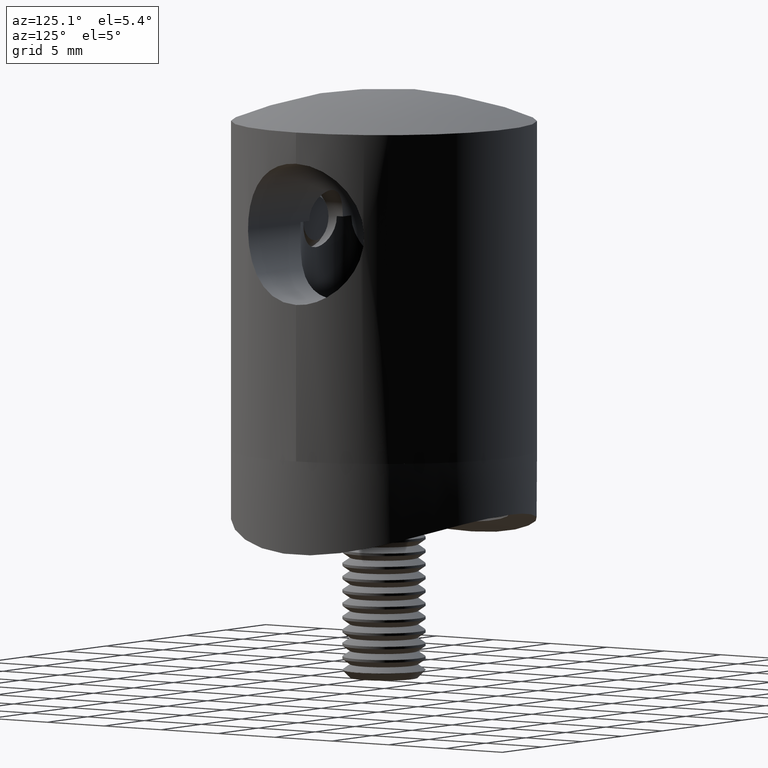
[diagram: clean part render]
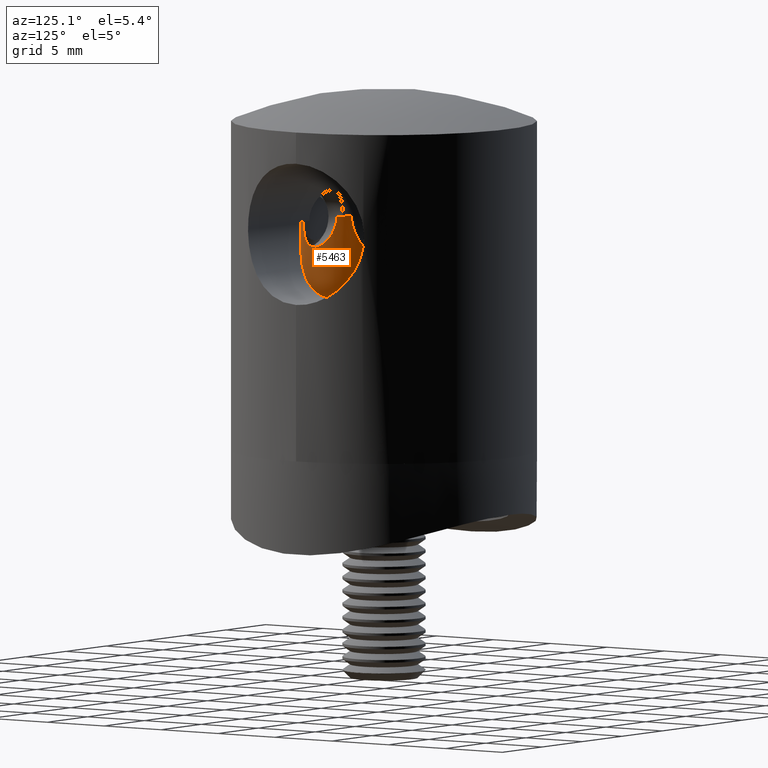
[diagram: same view with one face highlighted and labeled with its STEP entity id]
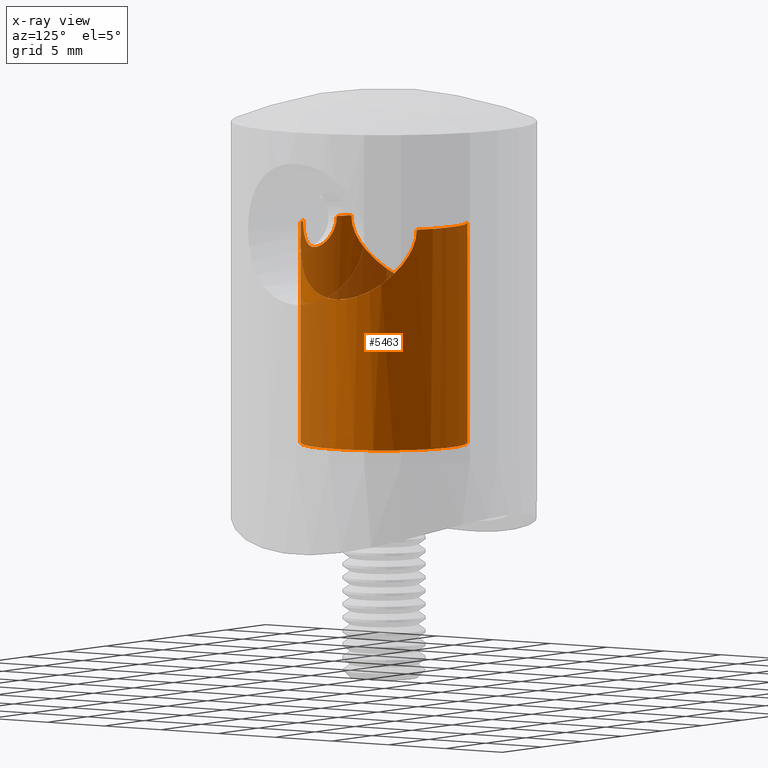
[diagram: x-ray of the same camera — body ghosted, the highlighted face saturated]
A machine part, auxiliary view. The second image highlights one B-rep face of the part: STEP entity #5463.
The next image is the same camera in x-ray: the body ghosted, the highlighted face saturated — about 32% of this face is hidden behind the body in this view.
In plain terms, the highlighted cylindrical surface (bore or boss wall) has radius 6 mm, axis along (-0, -0, -1).
Its self-contained STEP definition (entity closure, byte-faithful):
#93 = CARTESIAN_POINT ( 'NONE',  ( -1.832704397464457200, -5.714346342055216100, 5.061775951773686400 ) ) ;
#124 = DIRECTION ( 'NONE',  ( -0.0000000000000000000, -0.0000000000000000000, -1.000000000000000000 ) ) ;
#150 = DIRECTION ( 'NONE',  ( -1.000000000000000000, 0.0000000000000000000, 0.0000000000000000000 ) ) ;
#168 = CARTESIAN_POINT ( 'NONE',  ( -1.991246174694209200, -5.660214997163486700, 3.319050225171499900 ) ) ;
#340 = CARTESIAN_POINT ( 'NONE',  ( -4.420797845977277000, 4.064149940858574600, 13.30304720220789800 ) ) ;
#520 = CARTESIAN_POINT ( 'NONE',  ( -3.896672037690059700, -4.566915886893900400, 14.10728764135303600 ) ) ;
#567 = CARTESIAN_POINT ( 'NONE',  ( -5.522045992001460000, -2.370304617501131500, 11.87131438089884300 ) ) ;
#671 = DIRECTION ( 'NONE',  ( 0.0000000000000000000, 0.0000000000000000000, -1.000000000000000000 ) ) ;
#698 = B_SPLINE_CURVE_WITH_KNOTS ( 'NONE', 3,
 ( #10482, #4973, #14033, #3246, #15848, #21313, #5050, #3327, #15926, #7396, #7085, #7165, #21622, #5504, #19970, #9065, #19820, #16305, #16227, #18109, #1985, #9141, #16079, #7322, #10865, #23196, #19744, #21701, #12534, #1746, #14578, #5281, #17960, #1905, #14425, #5426, #8915, #19894, #8990, #18037, #93, #1669, #21545, #10944, #14344, #3557, #12768, #12457, #168, #12691, #16158, #3791, #10787, #14501, #7246, #21470, #3713, #16388, #14261, #19666 ),
 .UNSPECIFIED., .T., .F.,
 ( 4, 2, 2, 2, 2, 2, 2, 2, 2, 2, 2, 2, 2, 2, 2, 2, 2, 2, 2, 2, 2, 2, 2, 2, 2, 2, 2, 2, 2, 4 ),
 ( 0.0000000000000000000, 0.0004135997285890928200, 0.0008271994571781854200, 0.001240799185767278200, 0.001654398914356370600, 0.002481598371534556400, 0.002895198100123648800, 0.003308797828712741300, 0.003722397557301833300, 0.004135997285890926100, 0.004549597014480017700, 0.004963196743069110200, 0.005376796471658201700, 0.005790396200247294200, 0.006203995928836386600, 0.006617595657425478200, 0.007031195386014570600, 0.007444795114603662200, 0.007858394843192756400, 0.008271994571781848800, 0.009099194028960033700, 0.009512793757549127900, 0.009926393486138223800, 0.01033999321472731600, 0.01075359294331641200, 0.01158079240049460000, 0.01199439212908369600, 0.01240799185767279400, 0.01282159158626188800, 0.01323519131485098400 ),
 .UNSPECIFIED. ) ;
#817 = CARTESIAN_POINT ( 'NONE',  ( -3.160696125855821500, -5.100000000000001400, 16.39999999999999900 ) ) ;
#827 = VERTEX_POINT ( 'NONE', #15516 ) ;
#829 = DIRECTION ( 'NONE',  ( 1.000000000000000000, 0.0000000000000000000, 0.0000000000000000000 ) ) ;
#979 = CARTESIAN_POINT ( 'NONE',  ( 1.388100743326528200, -5.838073354946367000, 14.81829146266722000 ) ) ;
#1132 = CARTESIAN_POINT ( 'NONE',  ( 1.581145426180780900, -5.788773904085906500, 15.01125786700242200 ) ) ;
#1207 = CARTESIAN_POINT ( 'NONE',  ( -0.5490562351194452400, -5.976375191447418800, 14.36832204412794300 ) ) ;
#1396 = CARTESIAN_POINT ( 'NONE',  ( 6.007905056298978000, 0.007331184701876530100, 11.29070721246142900 ) ) ;
#1669 = CARTESIAN_POINT ( 'NONE',  ( -1.991790499454957100, -5.660027428170497600, 4.679568982034624000 ) ) ;
#1746 = CARTESIAN_POINT ( 'NONE',  ( 0.2777402781516119000, -5.995120906657181300, 6.086177050655782800 ) ) ;
#1905 = CARTESIAN_POINT ( 'NONE',  ( -0.5485102145950172500, -5.976435261253112900, 6.031854882297268200 ) ) ;
#1961 = ORIENTED_EDGE ( 'NONE', *, *, #7933, .F. ) ;
#1985 = CARTESIAN_POINT ( 'NONE',  ( 1.820638573103270200, -5.717652440165352300, 5.055379003986187700 ) ) ;
#2070 = CARTESIAN_POINT ( 'NONE',  ( -5.091321507266846100, -3.189219774148147800, 12.40698860909554400 ) ) ;
#2149 = CARTESIAN_POINT ( 'NONE',  ( -5.387974981389500200, -2.657518214066716400, 12.03504184698020800 ) ) ;
#2213 = CARTESIAN_POINT ( 'NONE',  ( -4.926986027419904000, -3.435326742096961100, 12.61745416032030000 ) ) ;
#2229 = FACE_BOUND ( 'NONE', #3775, .T. ) ;
#2673 = CARTESIAN_POINT ( 'NONE',  ( 3.160696125855821500, -5.100000000000001400, 16.39999999999999900 ) ) ;
#2702 = CARTESIAN_POINT ( 'NONE',  ( 0.5465245440339813200, -5.976592909209327500, 14.36768471283434000 ) ) ;
#2861 = CARTESIAN_POINT ( 'NONE',  ( -0.6825312203143322200, -5.962411381140925400, 14.40931569119171100 ) ) ;
#2967 = CARTESIAN_POINT ( 'NONE',  ( 5.991650558390248600, 0.3634414265308563700, 11.30981556748035800 ) ) ;
#2993 = EDGE_CURVE ( 'NONE', #5567, #3332, #20877, .T. ) ;
#3044 = CARTESIAN_POINT ( 'NONE',  ( 3.176763845537689900, -5.090127937175814100, 16.03667378425232200 ) ) ;
#3246 = CARTESIAN_POINT ( 'NONE',  ( 0.5472454995192380700, -5.976522812652007100, 1.967890563847576500 ) ) ;
#3264 = ORIENTED_EDGE ( 'NONE', *, *, #6862, .F. ) ;
#3284 = CARTESIAN_POINT ( 'NONE',  ( 5.992521419472591800, -0.3487559336365772000, 11.30879105119112500 ) ) ;
#3327 = CARTESIAN_POINT ( 'NONE',  ( 1.282773082496065000, -5.862417377531365900, 2.331696866173552900 ) ) ;
#3332 = VERTEX_POINT ( 'NONE', #11391 ) ;
#3543 = CARTESIAN_POINT ( 'NONE',  ( -2.099999999999993400, -5.620498198558562000, 16.39999999999999900 ) ) ;
#3557 = CARTESIAN_POINT ( 'NONE',  ( -2.099994040831215400, -5.620500425096848200, 3.861512015611140700 ) ) ;
#3581 = CARTESIAN_POINT ( 'NONE',  ( 0.0000000000000000000, 0.0000000000000000000, 16.39999999999999900 ) ) ;
#3620 = EDGE_LOOP ( 'NONE', ( #6875 ) ) ;
#3624 = ORIENTED_EDGE ( 'NONE', *, *, #2993, .F. ) ;
#3669 = VERTEX_POINT ( 'NONE', #2673 ) ;
#3713 = CARTESIAN_POINT ( 'NONE',  ( -0.5468734143387938800, -5.976552651432204900, 1.967803393346849300 ) ) ;
#3772 = CARTESIAN_POINT ( 'NONE',  ( 0.0000000000000000000, 0.0000000000000000000, 16.39999999999999900 ) ) ;
#3775 = EDGE_LOOP ( 'NONE', ( #6378 ) ) ;
#3791 = CARTESIAN_POINT ( 'NONE',  ( -1.388843066986826800, -5.837892061353310100, 2.418972633787931100 ) ) ;
#3883 = CARTESIAN_POINT ( 'NONE',  ( -3.236073373752399900, 5.052629025252485000, 15.68421491420723000 ) ) ;
#3958 = CARTESIAN_POINT ( 'NONE',  ( -5.392728365209467100, 2.648149806214045400, 12.02916221421408600 ) ) ;
#4039 = EDGE_CURVE ( 'NONE', #3332, #827, #21110, .T. ) ;
#4498 = CIRCLE ( 'NONE', #6052, 6.000000000000000900 ) ;
#4585 = CARTESIAN_POINT ( 'NONE',  ( -2.099999999999993400, -5.620498198558562900, 16.26009624278562200 ) ) ;
#4695 = CARTESIAN_POINT ( 'NONE',  ( 3.896672037690059700, 4.566915886893900400, 14.10728764135303600 ) ) ;
#4773 = CARTESIAN_POINT ( 'NONE',  ( 3.448880571870624600, -4.910452896524973600, 15.01259739754040400 ) ) ;
#4843 = CARTESIAN_POINT ( 'NONE',  ( 0.0000000000000000000, 0.0000000000000000000, 16.39999999999999900 ) ) ;
#4852 = CARTESIAN_POINT ( 'NONE',  ( 5.754041743160549100, -1.732659737827856500, 11.59116329903517700 ) ) ;
#4935 = CARTESIAN_POINT ( 'NONE',  ( 5.959378708157824900, 0.7195634073048298200, 11.34784246777162200 ) ) ;
#4967 = CARTESIAN_POINT ( 'NONE',  ( 6.000000000000000900, 0.0000000000000000000, 0.5000000000000073300 ) ) ;
#4973 = CARTESIAN_POINT ( 'NONE',  ( 0.1399303184415932900, -6.000000000000000900, 1.900000000000006800 ) ) ;
#5050 = CARTESIAN_POINT ( 'NONE',  ( 1.055318436482936700, -5.907600806349175400, 2.179273462287427700 ) ) ;
#5089 = CARTESIAN_POINT ( 'NONE',  ( 5.841456572235876400, 1.414219495481199500, 11.48734484294548600 ) ) ;
#5219 = DIRECTION ( 'NONE',  ( -1.000000000000000000, 0.0000000000000000000, 0.0000000000000000000 ) ) ;
#5281 = CARTESIAN_POINT ( 'NONE',  ( -0.1370357647622484900, -6.000018211104130500, 6.100052031729359400 ) ) ;
#5298 = CARTESIAN_POINT ( 'NONE',  ( 0.0000000000000000000, 0.0000000000000000000, 16.39999999999999900 ) ) ;
#5426 = CARTESIAN_POINT ( 'NONE',  ( -0.9335114993840605300, -5.928316084038139700, 5.886112174640410400 ) ) ;
#5463 = ADVANCED_FACE ( 'NONE', ( #2229, #13515, #7014 ), #12960, .F. ) ;
#5504 = CARTESIAN_POINT ( 'NONE',  ( 2.086293483836122700, -5.625674900985020000, 3.723311567177205000 ) ) ;
#5567 = VERTEX_POINT ( 'NONE', #817 ) ;
#5594 = EDGE_CURVE ( 'NONE', #19785, #12108, #5877, .T. ) ;
#5672 = CARTESIAN_POINT ( 'NONE',  ( -3.160696125855820600, 5.100000000000000500, 16.21838618592478600 ) ) ;
#5708 = CIRCLE ( 'NONE', #6120, 6.000000000000000900 ) ;
#5770 = EDGE_CURVE ( 'NONE', #6087, #6087, #698, .T. ) ;
#5823 = CARTESIAN_POINT ( 'NONE',  ( -5.935100455611847200, -0.8973519367980685700, 11.37647445812125600 ) ) ;
#5877 = B_SPLINE_CURVE_WITH_KNOTS ( 'NONE', 3,
 ( #12001, #4585, #8366, #15312, #20927, #20700, #6319, #15621, #15537, #11756, #17183, #2861, #1207, #6388, #15463, #22574, #8444, #2702, #11840, #17336, #8217, #18907, #979, #1132, #13800, #10098, #10023, #19050, #13726, #17415 ),
 .UNSPECIFIED., .F., .F.,
 ( 4, 2, 2, 2, 2, 2, 2, 2, 2, 2, 2, 2, 2, 2, 4 ),
 ( 0.0000000000000000000, 0.0004134711243893158000, 0.0008269422487786315900, 0.001240413373167952200, 0.001653884497557272700, 0.002480826746335913400, 0.002894297870725233300, 0.003307768995114553700, 0.003721240119503874000, 0.004134711243893194000, 0.004548182368282514300, 0.004961653492671834600, 0.005375124617061155000, 0.005788595741450475300, 0.006615537990229111700 ),
 .UNSPECIFIED. ) ;
#5899 = CARTESIAN_POINT ( 'NONE',  ( -3.587536456729938400, 4.810083889045049700, 14.69690675221483800 ) ) ;
#6052 = AXIS2_PLACEMENT_3D ( 'NONE', #5298, #16018, #5219 ) ;
#6087 = VERTEX_POINT ( 'NONE', #15381 ) ;
#6120 = AXIS2_PLACEMENT_3D ( 'NONE', #13276, #671, #829 ) ;
#6319 = CARTESIAN_POINT ( 'NONE',  ( -1.821103364984106600, -5.717509085771630400, 15.34534528377743400 ) ) ;
#6378 = ORIENTED_EDGE ( 'NONE', *, *, #5770, .T. ) ;
#6388 = CARTESIAN_POINT ( 'NONE',  ( -0.2775029543852128300, -5.995124293005040400, 14.31381444353397100 ) ) ;
#6422 = CARTESIAN_POINT ( 'NONE',  ( 3.437899923984606400, 4.919077726535473300, 15.00999836244040100 ) ) ;
#6634 = CARTESIAN_POINT ( 'NONE',  ( 2.099999999999993400, -5.620498198558562000, 16.39999999999999900 ) ) ;
#6641 = AXIS2_PLACEMENT_3D ( 'NONE', #3772, #21757, #150 ) ;
#6862 = EDGE_CURVE ( 'NONE', #3669, #12108, #4498, .T. ) ;
#6875 = ORIENTED_EDGE ( 'NONE', *, *, #17134, .T. ) ;
#7014 = FACE_OUTER_BOUND ( 'NONE', #12396, .T. ) ;
#7085 = CARTESIAN_POINT ( 'NONE',  ( 1.833344241584947000, -5.714120875558134700, 2.940059396667278300 ) ) ;
#7165 = CARTESIAN_POINT ( 'NONE',  ( 1.990963533487665200, -5.660313271408463200, 3.318295880892016200 ) ) ;
#7246 = CARTESIAN_POINT ( 'NONE',  ( -0.9349122421464504100, -5.928103206872799900, 2.114551264284959300 ) ) ;
#7314 = ORIENTED_EDGE ( 'NONE', *, *, #4039, .F. ) ;
#7322 = CARTESIAN_POINT ( 'NONE',  ( 1.388251816607981800, -5.838037281970530400, 5.581575950864485800 ) ) ;
#7396 = CARTESIAN_POINT ( 'NONE',  ( 1.677500159237451200, -5.764135783203782300, 2.707802910303008600 ) ) ;
#7489 = CARTESIAN_POINT ( 'NONE',  ( -5.754041743160549100, 1.732659737827856500, 11.59116329903517700 ) ) ;
#7749 = B_SPLINE_CURVE_WITH_KNOTS ( 'NONE', 3,
 ( #8013, #11879, #11795, #6422, #15499, #4695, #19086, #22915, #15574, #13916, #22684, #19243, #15654, #10360, #5089, #12189, #4935, #2967, #1396, #3284, #8560, #22758, #19169, #4852, #15733, #10441, #13837, #8485, #10283, #22841, #12267, #8323, #10205, #14068, #4773, #17531, #11958, #12034, #3044, #13760, #12116 ),
 .UNSPECIFIED., .F., .F.,
 ( 4, 2, 2, 2, 2, 2, 2, 2, 2, 1, 2, 2, 2, 2, 2, 2, 2, 2, 2, 2, 4 ),
 ( 0.0000000000000000000, 0.001071220141085162500, 0.002142440282170325100, 0.003213660423255487200, 0.004284880564340650200, 0.005356100705425813200, 0.006427320846510976200, 0.007498540987596139100, 0.008034151058138721100, 0.008569761128681303900, 0.009105371199223884900, 0.009640981269766464200, 0.01071220141085162800, 0.01178342155193679200, 0.01285464169302195600, 0.01392586183410712100, 0.01499708197519228500, 0.01553269204573486800, 0.01606830211627745300, 0.01660391218682003400, 0.01713952225736261800 ),
 .UNSPECIFIED. ) ;
#7756 = CARTESIAN_POINT ( 'NONE',  ( -3.160696125855821500, -5.100000000000001400, 16.39999999999999900 ) ) ;
#7839 = CARTESIAN_POINT ( 'NONE',  ( -4.415955492431838700, -4.069282658997688700, 13.31003616340318800 ) ) ;
#7933 = EDGE_CURVE ( 'NONE', #19785, #5567, #19997, .T. ) ;
#8013 = CARTESIAN_POINT ( 'NONE',  ( 3.160696125855821500, 5.100000000000001400, 16.39999999999999900 ) ) ;
#8217 = CARTESIAN_POINT ( 'NONE',  ( 1.054786958967406600, -5.907685361718814800, 14.57901611062495200 ) ) ;
#8323 = CARTESIAN_POINT ( 'NONE',  ( 3.899298338505512900, -4.564665450330344300, 14.10293722739147500 ) ) ;
#8366 = CARTESIAN_POINT ( 'NONE',  ( -2.086161322621488800, -5.625722805226717000, 16.12277185622838300 ) ) ;
#8444 = CARTESIAN_POINT ( 'NONE',  ( 0.2762238880629270300, -5.995169075456185900, 14.31368869356891900 ) ) ;
#8485 = CARTESIAN_POINT ( 'NONE',  ( 4.930883832659188400, -3.429680394446590800, 12.61241110340417000 ) ) ;
#8560 = CARTESIAN_POINT ( 'NONE',  ( 5.961137178804953900, -0.7048313270236067400, 11.34576889506183600 ) ) ;
#8915 = CARTESIAN_POINT ( 'NONE',  ( -1.056301083882023900, -5.907416619898390800, 5.820119853568162000 ) ) ;
#8990 = CARTESIAN_POINT ( 'NONE',  ( -1.388036528353558100, -5.838097357248577700, 5.581828602384570500 ) ) ;
#9065 = CARTESIAN_POINT ( 'NONE',  ( 2.100097390676808600, -5.620461810260685800, 4.136718875267625600 ) ) ;
#9141 = CARTESIAN_POINT ( 'NONE',  ( 1.669065092636238500, -5.763722404570113900, 5.281706429908801700 ) ) ;
#9313 = CARTESIAN_POINT ( 'NONE',  ( -5.961137178804953900, 0.7048313270236067400, 11.34576889506183600 ) ) ;
#9462 = CARTESIAN_POINT ( 'NONE',  ( -5.991650558390248600, -0.3634414265308563700, 11.30981556748035800 ) ) ;
#9539 = CARTESIAN_POINT ( 'NONE',  ( -4.594853628076902100, 3.868286845074914800, 13.06160305806997900 ) ) ;
#9619 = CARTESIAN_POINT ( 'NONE',  ( -3.899298338505512900, 4.564665450330344300, 14.10293722739147500 ) ) ;
#9652 = CARTESIAN_POINT ( 'NONE',  ( -3.160696125855821500, -5.100000000000000500, 16.03670030206456000 ) ) ;
#9694 = AXIS2_PLACEMENT_3D ( 'NONE', #4843, #21107, #15797 ) ;
#10023 = CARTESIAN_POINT ( 'NONE',  ( 1.885418852616170400, -5.696340175670712800, 15.46517598554055600 ) ) ;
#10098 = CARTESIAN_POINT ( 'NONE',  ( 1.819463842430682400, -5.718030180234721100, 15.34256723993026700 ) ) ;
#10205 = CARTESIAN_POINT ( 'NONE',  ( 3.662736925341414800, -4.753370674297174000, 14.54497055375999000 ) ) ;
#10283 = CARTESIAN_POINT ( 'NONE',  ( 4.594853628076902100, -3.868286845074914800, 13.06160305806997900 ) ) ;
#10360 = CARTESIAN_POINT ( 'NONE',  ( 5.750816287354224300, 1.743401258066523000, 11.59501410306202000 ) ) ;
#10441 = CARTESIAN_POINT ( 'NONE',  ( 5.392728365209467100, -2.648149806214045400, 12.02916221421408600 ) ) ;
#10482 = CARTESIAN_POINT ( 'NONE',  ( -5.421010862427522200E-017, -6.000000000000001800, 1.900000000000007200 ) ) ;
#10787 = CARTESIAN_POINT ( 'NONE',  ( -1.281623710314719200, -5.862660541099056200, 2.330856865501477400 ) ) ;
#10865 = CARTESIAN_POINT ( 'NONE',  ( 1.283385613909028100, -5.862276931221736700, 5.667804354879554500 ) ) ;
#10944 = CARTESIAN_POINT ( 'NONE',  ( -2.085970634324527700, -5.625794041661615500, 4.278667550940393300 ) ) ;
#11263 = CARTESIAN_POINT ( 'NONE',  ( -6.007905056298978000, -0.007331184701876530100, 11.29070721246142900 ) ) ;
#11391 = CARTESIAN_POINT ( 'NONE',  ( -3.160696125855821500, 5.100000000000001400, 16.39999999999999900 ) ) ;
#11423 = VERTEX_POINT ( 'NONE', #4967 ) ;
#11756 = CARTESIAN_POINT ( 'NONE',  ( -1.293182858015596200, -5.862331884177947900, 14.72327574825753900 ) ) ;
#11795 = CARTESIAN_POINT ( 'NONE',  ( 3.224345162553830000, 5.061628180708900100, 15.68631211838138200 ) ) ;
#11840 = CARTESIAN_POINT ( 'NONE',  ( 0.6780404846647971600, -5.962962003686424600, 14.40765462500891300 ) ) ;
#11879 = CARTESIAN_POINT ( 'NONE',  ( 3.160696125855821500, 5.100000000000000500, 16.03670030206456000 ) ) ;
#11958 = CARTESIAN_POINT ( 'NONE',  ( 3.279023719471608500, -5.025144788923042500, 15.51269972870959700 ) ) ;
#12001 = CARTESIAN_POINT ( 'NONE',  ( -2.099999999999993400, -5.620498198558562000, 16.39999999999999900 ) ) ;
#12034 = CARTESIAN_POINT ( 'NONE',  ( 3.236073373752399900, -5.052629025252485000, 15.68421491420723000 ) ) ;
#12108 = VERTEX_POINT ( 'NONE', #6634 ) ;
#12116 = CARTESIAN_POINT ( 'NONE',  ( 3.160696125855821500, -5.100000000000001400, 16.39999999999999900 ) ) ;
#12189 = CARTESIAN_POINT ( 'NONE',  ( 5.935100455611847200, 0.8973519367980685700, 11.37647445812125600 ) ) ;
#12267 = CARTESIAN_POINT ( 'NONE',  ( 4.072506689530409400, -4.413100678718776300, 13.82454396794957000 ) ) ;
#12396 = EDGE_LOOP ( 'NONE', ( #1961, #16582, #3264, #19611, #7314, #3624 ) ) ;
#12457 = CARTESIAN_POINT ( 'NONE',  ( -2.032103204105485200, -5.645475466979344300, 3.452485469036112400 ) ) ;
#12534 = CARTESIAN_POINT ( 'NONE',  ( 0.5499592264330737100, -5.976299791409975800, 6.031457407392960800 ) ) ;
#12691 = CARTESIAN_POINT ( 'NONE',  ( -1.833295944888411600, -5.714140928245533300, 2.939791683323970800 ) ) ;
#12768 = CARTESIAN_POINT ( 'NONE',  ( -2.086440083120673500, -5.625620362231071400, 3.724349182297993300 ) ) ;
#12861 = CARTESIAN_POINT ( 'NONE',  ( -3.279023719471608500, 5.025144788923042500, 15.51269972870959700 ) ) ;
#12938 = CARTESIAN_POINT ( 'NONE',  ( -3.176763845537689900, 5.090127937175814100, 16.03667378425232200 ) ) ;
#12960 = CYLINDRICAL_SURFACE ( 'NONE', #13145, 6.000000000000000900 ) ;
#13089 = CARTESIAN_POINT ( 'NONE',  ( -5.937279120420515500, 0.8828896206105536500, 11.37390155145837900 ) ) ;
#13145 = AXIS2_PLACEMENT_3D ( 'NONE', #3581, #124, #16184 ) ;
#13200 = CARTESIAN_POINT ( 'NONE',  ( -3.437899923984606400, -4.919077726535473300, 15.00999836244040100 ) ) ;
#13276 = CARTESIAN_POINT ( 'NONE',  ( 0.0000000000000000000, 0.0000000000000000000, 0.5000000000000073300 ) ) ;
#13515 = FACE_OUTER_BOUND ( 'NONE', #3620, .T. ) ;
#13726 = CARTESIAN_POINT ( 'NONE',  ( 2.099999999999993400, -5.620498198558562900, 16.12015501401208100 ) ) ;
#13760 = CARTESIAN_POINT ( 'NONE',  ( 3.160696125855820600, -5.100000000000000500, 16.21838618592478600 ) ) ;
#13800 = CARTESIAN_POINT ( 'NONE',  ( 1.667353304562425100, -5.764221610395673600, 15.11604296265565300 ) ) ;
#13837 = CARTESIAN_POINT ( 'NONE',  ( 5.094334937987475200, -3.184645687778531200, 12.40313220269684200 ) ) ;
#13916 = CARTESIAN_POINT ( 'NONE',  ( 4.926986027419904000, 3.435326742096961100, 12.61745416032030000 ) ) ;
#14033 = CARTESIAN_POINT ( 'NONE',  ( 0.2773110508732141700, -5.995114773543329000, 1.913844450117064800 ) ) ;
#14068 = CARTESIAN_POINT ( 'NONE',  ( 3.587536456729938400, -4.810083889045049700, 14.69690675221483800 ) ) ;
#14261 = CARTESIAN_POINT ( 'NONE',  ( -0.1399303184415943700, -6.000000000000003600, 1.900000000000007500 ) ) ;
#14344 = CARTESIAN_POINT ( 'NONE',  ( -2.100005955277873600, -5.620495973474043600, 4.138307198453890800 ) ) ;
#14425 = CARTESIAN_POINT ( 'NONE',  ( -0.6799031944775879600, -5.962726470154970900, 5.991631115680869300 ) ) ;
#14501 = CARTESIAN_POINT ( 'NONE',  ( -1.054979748196500600, -5.907653145361193100, 2.179116733785587000 ) ) ;
#14578 = CARTESIAN_POINT ( 'NONE',  ( 0.1386258689238649400, -5.999981683544565800, 6.099947667266898000 ) ) ;
#14676 = CARTESIAN_POINT ( 'NONE',  ( -5.844685562798253500, 1.400985515938927300, 11.48350954739190200 ) ) ;
#14752 = CARTESIAN_POINT ( 'NONE',  ( -3.160696125855821500, 5.100000000000001400, 16.39999999999999900 ) ) ;
#14851 = CARTESIAN_POINT ( 'NONE',  ( -3.224345162553830000, -5.061628180708900100, 15.68631211838138200 ) ) ;
#14896 = CARTESIAN_POINT ( 'NONE',  ( -5.094334937987475200, 3.184645687778531200, 12.40313220269684200 ) ) ;
#15004 = CARTESIAN_POINT ( 'NONE',  ( -4.070385370908269400, -4.414939093832910700, 13.82798703968248900 ) ) ;
#15312 = CARTESIAN_POINT ( 'NONE',  ( -2.032167245811339100, -5.645451481529298700, 15.85298922062499500 ) ) ;
#15381 = CARTESIAN_POINT ( 'NONE',  ( 0.0000000000000000000, -6.000000000000000900, 1.900000000000006800 ) ) ;
#15463 = CARTESIAN_POINT ( 'NONE',  ( -0.1405143709996645200, -5.999946239734655700, 14.30015360083966800 ) ) ;
#15499 = CARTESIAN_POINT ( 'NONE',  ( 3.580811593932919900, 4.818564310667141200, 14.69862154080247400 ) ) ;
#15516 = CARTESIAN_POINT ( 'NONE',  ( 3.160696125855821500, 5.100000000000001400, 16.39999999999999900 ) ) ;
#15537 = CARTESIAN_POINT ( 'NONE',  ( -1.581135186446068800, -5.788767207127166100, 15.01131607183499200 ) ) ;
#15574 = CARTESIAN_POINT ( 'NONE',  ( 4.589665673809800900, 3.874484500163802200, 13.06871005281209900 ) ) ;
#15621 = CARTESIAN_POINT ( 'NONE',  ( -1.668887732770615300, -5.763778391580065600, 15.11799852893426500 ) ) ;
#15654 = CARTESIAN_POINT ( 'NONE',  ( 5.522045992001460000, 2.370304617501131500, 11.87131438089884300 ) ) ;
#15733 = CARTESIAN_POINT ( 'NONE',  ( 5.526712704781847000, -2.359354324370696300, 11.86563484534943500 ) ) ;
#15797 = DIRECTION ( 'NONE',  ( -1.000000000000000000, 0.0000000000000000000, 0.0000000000000000000 ) ) ;
#15848 = CARTESIAN_POINT ( 'NONE',  ( 0.6812341139050355200, -5.962577447961941800, 2.008811109739972300 ) ) ;
#15926 = CARTESIAN_POINT ( 'NONE',  ( 1.389511688007988100, -5.837728522015407200, 2.419587935187493200 ) ) ;
#16018 = DIRECTION ( 'NONE',  ( 0.0000000000000000000, 0.0000000000000000000, -1.000000000000000000 ) ) ;
#16079 = CARTESIAN_POINT ( 'NONE',  ( 1.581278183707604900, -5.788737489101017700, 5.388590976637336100 ) ) ;
#16158 = CARTESIAN_POINT ( 'NONE',  ( -1.677594955765174600, -5.764126152619212500, 2.707790437232916700 ) ) ;
#16184 = DIRECTION ( 'NONE',  ( -1.000000000000000000, 0.0000000000000000000, 0.0000000000000000000 ) ) ;
#16227 = CARTESIAN_POINT ( 'NONE',  ( 1.992054000542895300, -5.659936331073166300, 4.678887825467367800 ) ) ;
#16305 = CARTESIAN_POINT ( 'NONE',  ( 2.032077313730785000, -5.645484189008472600, 4.547412400692979700 ) ) ;
#16388 = CARTESIAN_POINT ( 'NONE',  ( -0.2773106023340089500, -5.995110587510879400, 1.913857049664069200 ) ) ;
#16476 = CARTESIAN_POINT ( 'NONE',  ( -4.930883832659188400, 3.429680394446590800, 12.61241110340417000 ) ) ;
#16550 = CARTESIAN_POINT ( 'NONE',  ( -5.750816287354224300, -1.743401258066523000, 11.59501410306202000 ) ) ;
#16582 = ORIENTED_EDGE ( 'NONE', *, *, #5594, .T. ) ;
#16653 = CARTESIAN_POINT ( 'NONE',  ( -3.580811593932919900, -4.818564310667141200, 14.69862154080247400 ) ) ;
#16697 = CARTESIAN_POINT ( 'NONE',  ( -3.662736925341414800, 4.753370674297174000, 14.54497055375999000 ) ) ;
#16778 = CARTESIAN_POINT ( 'NONE',  ( -5.841456572235876400, -1.414219495481199500, 11.48734484294548600 ) ) ;
#17134 = EDGE_CURVE ( 'NONE', #11423, #11423, #5708, .T. ) ;
#17183 = CARTESIAN_POINT ( 'NONE',  ( -1.060865814313644900, -5.910952300828607300, 14.56717287771649800 ) ) ;
#17336 = CARTESIAN_POINT ( 'NONE',  ( 0.9338081153408350800, -5.928292938104198700, 14.51395085010584800 ) ) ;
#17415 = CARTESIAN_POINT ( 'NONE',  ( 2.099999999999993400, -5.620498198558562000, 16.39999999999999900 ) ) ;
#17531 = CARTESIAN_POINT ( 'NONE',  ( 3.385219306525883500, -4.954227179815460700, 15.17729195150674400 ) ) ;
#17960 = CARTESIAN_POINT ( 'NONE',  ( -0.2760850920997860400, -5.995199655506469000, 6.086402343784770100 ) ) ;
#18037 = CARTESIAN_POINT ( 'NONE',  ( -1.679082131009260700, -5.763747723864387500, 5.290733017625370800 ) ) ;
#18109 = CARTESIAN_POINT ( 'NONE',  ( 1.885684773470323500, -5.696257661656740200, 4.934537723020821600 ) ) ;
#18502 = CARTESIAN_POINT ( 'NONE',  ( -3.448880571870624600, 4.910452896524973600, 15.01259739754040400 ) ) ;
#18907 = CARTESIAN_POINT ( 'NONE',  ( 1.281211595993395200, -5.862748392022851400, 14.73055257631058100 ) ) ;
#19050 = CARTESIAN_POINT ( 'NONE',  ( 2.043386902171582300, -5.642424350851010600, 15.84378896156594900 ) ) ;
#19086 = CARTESIAN_POINT ( 'NONE',  ( 4.070385370908269400, 4.414939093832910700, 13.82798703968248900 ) ) ;
#19169 = CARTESIAN_POINT ( 'NONE',  ( 5.844685562798253500, -1.400985515938927300, 11.48350954739190200 ) ) ;
#19243 = CARTESIAN_POINT ( 'NONE',  ( 5.387974981389500200, 2.657518214066716400, 12.03504184698020800 ) ) ;
#19611 = ORIENTED_EDGE ( 'NONE', *, *, #20274, .F. ) ;
#19666 = CARTESIAN_POINT ( 'NONE',  ( -5.421010862427522200E-017, -6.000000000000001800, 1.900000000000007200 ) ) ;
#19744 = CARTESIAN_POINT ( 'NONE',  ( 0.9337857770029868200, -5.928263369488840700, 5.885943294885849200 ) ) ;
#19785 = VERTEX_POINT ( 'NONE', #3543 ) ;
#19820 = CARTESIAN_POINT ( 'NONE',  ( 2.086195265504057000, -5.625710555255438700, 4.277106224398222500 ) ) ;
#19894 = CARTESIAN_POINT ( 'NONE',  ( -1.282893921177701100, -5.862382304820062700, 5.668170089699676100 ) ) ;
#19970 = CARTESIAN_POINT ( 'NONE',  ( 2.099901555218821200, -5.620534980703876500, 3.860305477660864500 ) ) ;
#19997 = CIRCLE ( 'NONE', #9694, 6.000000000000000900 ) ;
#20059 = CARTESIAN_POINT ( 'NONE',  ( -4.072506689530409400, 4.413100678718776300, 13.82454396794957000 ) ) ;
#20135 = CARTESIAN_POINT ( 'NONE',  ( -5.992521419472591800, 0.3487559336365772000, 11.30879105119112500 ) ) ;
#20207 = CARTESIAN_POINT ( 'NONE',  ( -5.959378708157824900, -0.7195634073048298200, 11.34784246777162200 ) ) ;
#20274 = EDGE_CURVE ( 'NONE', #827, #3669, #7749, .T. ) ;
#20393 = CARTESIAN_POINT ( 'NONE',  ( -4.589665673809800900, -3.874484500163802200, 13.06871005281209900 ) ) ;
#20700 = CARTESIAN_POINT ( 'NONE',  ( -1.885609160016719700, -5.696279126466641300, 15.46546621339728700 ) ) ;
#20877 = B_SPLINE_CURVE_WITH_KNOTS ( 'NONE', 3,
 ( #7756, #9652, #14851, #13200, #16653, #520, #15004, #7839, #20393, #2213, #2070, #2149, #567, #16550, #16778, #5823, #20207, #9462, #11263, #20135, #9313, #13089, #14676, #7489, #21864, #3958, #14896, #16476, #9539, #340, #20059, #9619, #16697, #5899, #18502, #22166, #12861, #3883, #12938, #5672, #14752 ),
 .UNSPECIFIED., .F., .F.,
 ( 4, 2, 2, 2, 2, 2, 2, 2, 2, 1, 2, 2, 2, 2, 2, 2, 2, 2, 2, 2, 4 ),
 ( 0.0000000000000000000, 0.001071220141085162500, 0.002142440282170325100, 0.003213660423255487200, 0.004284880564340650200, 0.005356100705425813200, 0.006427320846510976200, 0.007498540987596139100, 0.008034151058138721100, 0.008569761128681303900, 0.009105371199223884900, 0.009640981269766464200, 0.01071220141085162800, 0.01178342155193679200, 0.01285464169302195600, 0.01392586183410712100, 0.01499708197519228500, 0.01553269204573486800, 0.01606830211627745300, 0.01660391218682003400, 0.01713952225736261800 ),
 .UNSPECIFIED. ) ;
#20927 = CARTESIAN_POINT ( 'NONE',  ( -1.991294792107790100, -5.660199894163008100, 15.71910327246684600 ) ) ;
#21107 = DIRECTION ( 'NONE',  ( 0.0000000000000000000, 0.0000000000000000000, -1.000000000000000000 ) ) ;
#21110 = CIRCLE ( 'NONE', #6641, 6.000000000000000900 ) ;
#21313 = CARTESIAN_POINT ( 'NONE',  ( 0.9351004188317552100, -5.928068568057646800, 2.114661748824999200 ) ) ;
#21470 = CARTESIAN_POINT ( 'NONE',  ( -0.6805891605157771100, -5.962656029525707200, 2.008574322222096000 ) ) ;
#21545 = CARTESIAN_POINT ( 'NONE',  ( -2.031781744484791200, -5.645590759985886100, 4.548445105721373100 ) ) ;
#21622 = CARTESIAN_POINT ( 'NONE',  ( 2.031893931028322200, -5.645550960297868800, 3.451744546214746900 ) ) ;
#21701 = CARTESIAN_POINT ( 'NONE',  ( 0.6810570200218701900, -5.962585327761368100, 5.991205495255797200 ) ) ;
#21757 = DIRECTION ( 'NONE',  ( 0.0000000000000000000, 0.0000000000000000000, -1.000000000000000000 ) ) ;
#21864 = CARTESIAN_POINT ( 'NONE',  ( -5.526712704781847000, 2.359354324370696300, 11.86563484534943500 ) ) ;
#22166 = CARTESIAN_POINT ( 'NONE',  ( -3.385219306525883500, 4.954227179815460700, 15.17729195150674400 ) ) ;
#22574 = CARTESIAN_POINT ( 'NONE',  ( 0.1358850886313292300, -6.000052867338013100, 14.29984895038197100 ) ) ;
#22684 = CARTESIAN_POINT ( 'NONE',  ( 5.091321507266846100, 3.189219774148147800, 12.40698860909554400 ) ) ;
#22758 = CARTESIAN_POINT ( 'NONE',  ( 5.937279120420515500, -0.8828896206105536500, 11.37390155145837900 ) ) ;
#22841 = CARTESIAN_POINT ( 'NONE',  ( 4.420797845977277000, -4.064149940858574600, 13.30304720220789800 ) ) ;
#22915 = CARTESIAN_POINT ( 'NONE',  ( 4.415955492431838700, 4.069282658997688700, 13.31003616340318800 ) ) ;
#23196 = CARTESIAN_POINT ( 'NONE',  ( 1.056572057962529300, -5.907370391185574800, 5.819974034561118600 ) ) ;